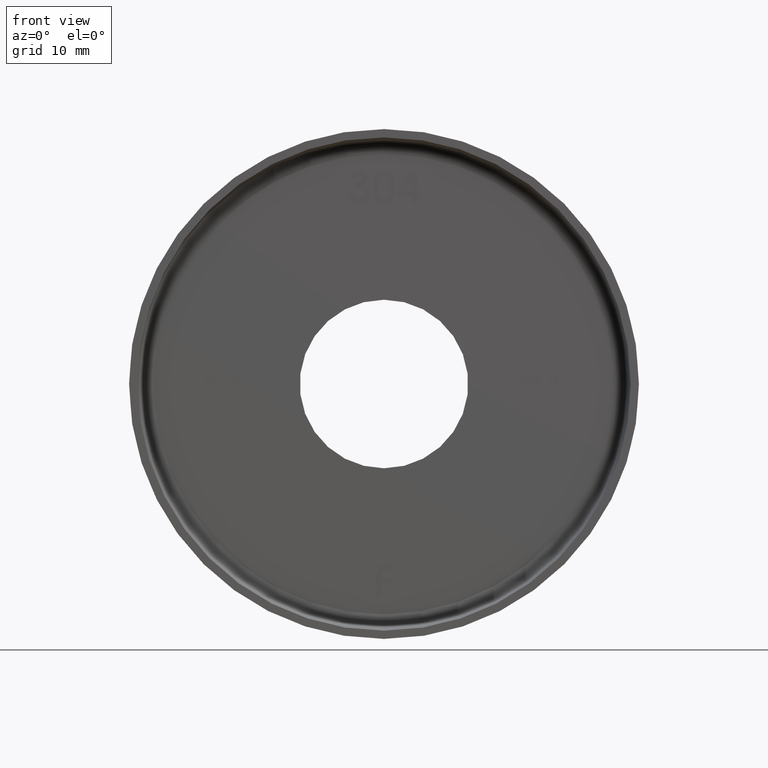
[diagram: clean part render]
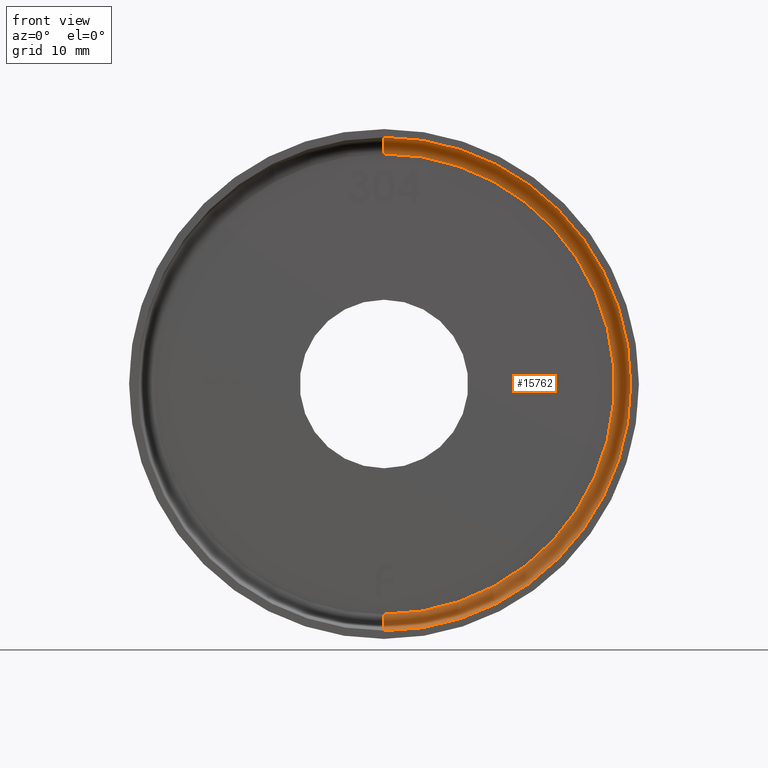
[diagram: same view with one face highlighted and labeled with its STEP entity id]
A machine part, front view. The second image highlights one B-rep face of the part: STEP entity #15762.
In plain terms, the highlighted toroidal blend (fillet) surface has major radius 28 mm and minor (blend) radius 2 mm.
Its self-contained STEP definition (entity closure, byte-faithful):
#49 = ORIENTED_EDGE ( 'NONE', *, *, #7540, .F. ) ;
#609 = CARTESIAN_POINT ( 'NONE',  ( 0.000000000000000000, 12.00000000000000000, 0.000000000000000000 ) ) ;
#1648 = CARTESIAN_POINT ( 'NONE',  ( 0.000000000000000000, 12.00000000000000000, 0.000000000000000000 ) ) ;
#1650 = TOROIDAL_SURFACE ( 'NONE', #6282, 27.99999999999999645, 2.000000000000000000 ) ;
#1850 = CARTESIAN_POINT ( 'NONE',  ( 3.673940397442059178E-15, 12.00000000000000000, 30.00000000000000000 ) ) ;
#1922 = DIRECTION ( 'NONE',  ( 0.000000000000000000, 0.000000000000000000, -1.000000000000000000 ) ) ;
#3255 = VERTEX_POINT ( 'NONE', #8056 ) ;
#3725 = AXIS2_PLACEMENT_3D ( 'NONE', #13799, #4893, #3783 ) ;
#3783 = DIRECTION ( 'NONE',  ( 0.000000000000000000, 0.000000000000000000, 1.000000000000000000 ) ) ;
#4097 = DIRECTION ( 'NONE',  ( -0.000000000000000000, -1.000000000000000000, -0.000000000000000000 ) ) ;
#4412 = CARTESIAN_POINT ( 'NONE',  ( 0.000000000000000000, 14.00000000000000000, -27.99999999999999645 ) ) ;
#4893 = DIRECTION ( 'NONE',  ( -1.000000000000000000, 0.000000000000000000, 0.000000000000000000 ) ) ;
#4922 = CARTESIAN_POINT ( 'NONE',  ( 0.000000000000000000, 12.00000000000000000, -30.00000000000000000 ) ) ;
#5222 = DIRECTION ( 'NONE',  ( -1.224646799147351482E-16, 0.000000000000000000, -1.000000000000000000 ) ) ;
#5303 = AXIS2_PLACEMENT_3D ( 'NONE', #6731, #4097, #14226 ) ;
#6282 = AXIS2_PLACEMENT_3D ( 'NONE', #1648, #12992, #7998 ) ;
#6421 = CARTESIAN_POINT ( 'NONE',  ( 3.429011037612588881E-15, 12.00000000000000000, 27.99999999999999645 ) ) ;
#6731 = CARTESIAN_POINT ( 'NONE',  ( 0.000000000000000000, 14.00000000000000000, 0.000000000000000000 ) ) ;
#7358 = ORIENTED_EDGE ( 'NONE', *, *, #12267, .T. ) ;
#7442 = ORIENTED_EDGE ( 'NONE', *, *, #9985, .F. ) ;
#7540 = EDGE_CURVE ( 'NONE', #11341, #3255, #10658, .T. ) ;
#7812 = DIRECTION ( 'NONE',  ( -0.000000000000000000, -1.000000000000000000, -0.000000000000000000 ) ) ;
#7998 = DIRECTION ( 'NONE',  ( 0.000000000000000000, 0.000000000000000000, -1.000000000000000000 ) ) ;
#8056 = CARTESIAN_POINT ( 'NONE',  ( 3.551475717527324030E-15, 14.00000000000000000, 27.99999999999999645 ) ) ;
#8371 = AXIS2_PLACEMENT_3D ( 'NONE', #6421, #12755, #5222 ) ;
#8824 = AXIS2_PLACEMENT_3D ( 'NONE', #609, #7812, #1922 ) ;
#9684 = ORIENTED_EDGE ( 'NONE', *, *, #14781, .T. ) ;
#9985 = EDGE_CURVE ( 'NONE', #3255, #11266, #14958, .T. ) ;
#10658 = CIRCLE ( 'NONE', #5303, 27.99999999999999645 ) ;
#10712 = VERTEX_POINT ( 'NONE', #4922 ) ;
#10802 = CIRCLE ( 'NONE', #3725, 2.000000000000001776 ) ;
#11266 = VERTEX_POINT ( 'NONE', #1850 ) ;
#11341 = VERTEX_POINT ( 'NONE', #4412 ) ;
#12267 = EDGE_CURVE ( 'NONE', #11341, #10712, #10802, .T. ) ;
#12755 = DIRECTION ( 'NONE',  ( 1.000000000000000000, 0.000000000000000000, -1.224646799147353207E-16 ) ) ;
#12992 = DIRECTION ( 'NONE',  ( -0.000000000000000000, -1.000000000000000000, -0.000000000000000000 ) ) ;
#13799 = CARTESIAN_POINT ( 'NONE',  ( 0.000000000000000000, 12.00000000000000000, -27.99999999999999645 ) ) ;
#14123 = EDGE_LOOP ( 'NONE', ( #7442, #49, #7358, #9684 ) ) ;
#14226 = DIRECTION ( 'NONE',  ( 0.000000000000000000, 0.000000000000000000, -1.000000000000000000 ) ) ;
#14506 = CIRCLE ( 'NONE', #8824, 30.00000000000000000 ) ;
#14781 = EDGE_CURVE ( 'NONE', #10712, #11266, #14506, .T. ) ;
#14958 = CIRCLE ( 'NONE', #8371, 2.000000000000001776 ) ;
#15762 = ADVANCED_FACE ( 'NONE', ( #16285 ), #1650, .F. ) ;
#16285 = FACE_OUTER_BOUND ( 'NONE', #14123, .T. ) ;